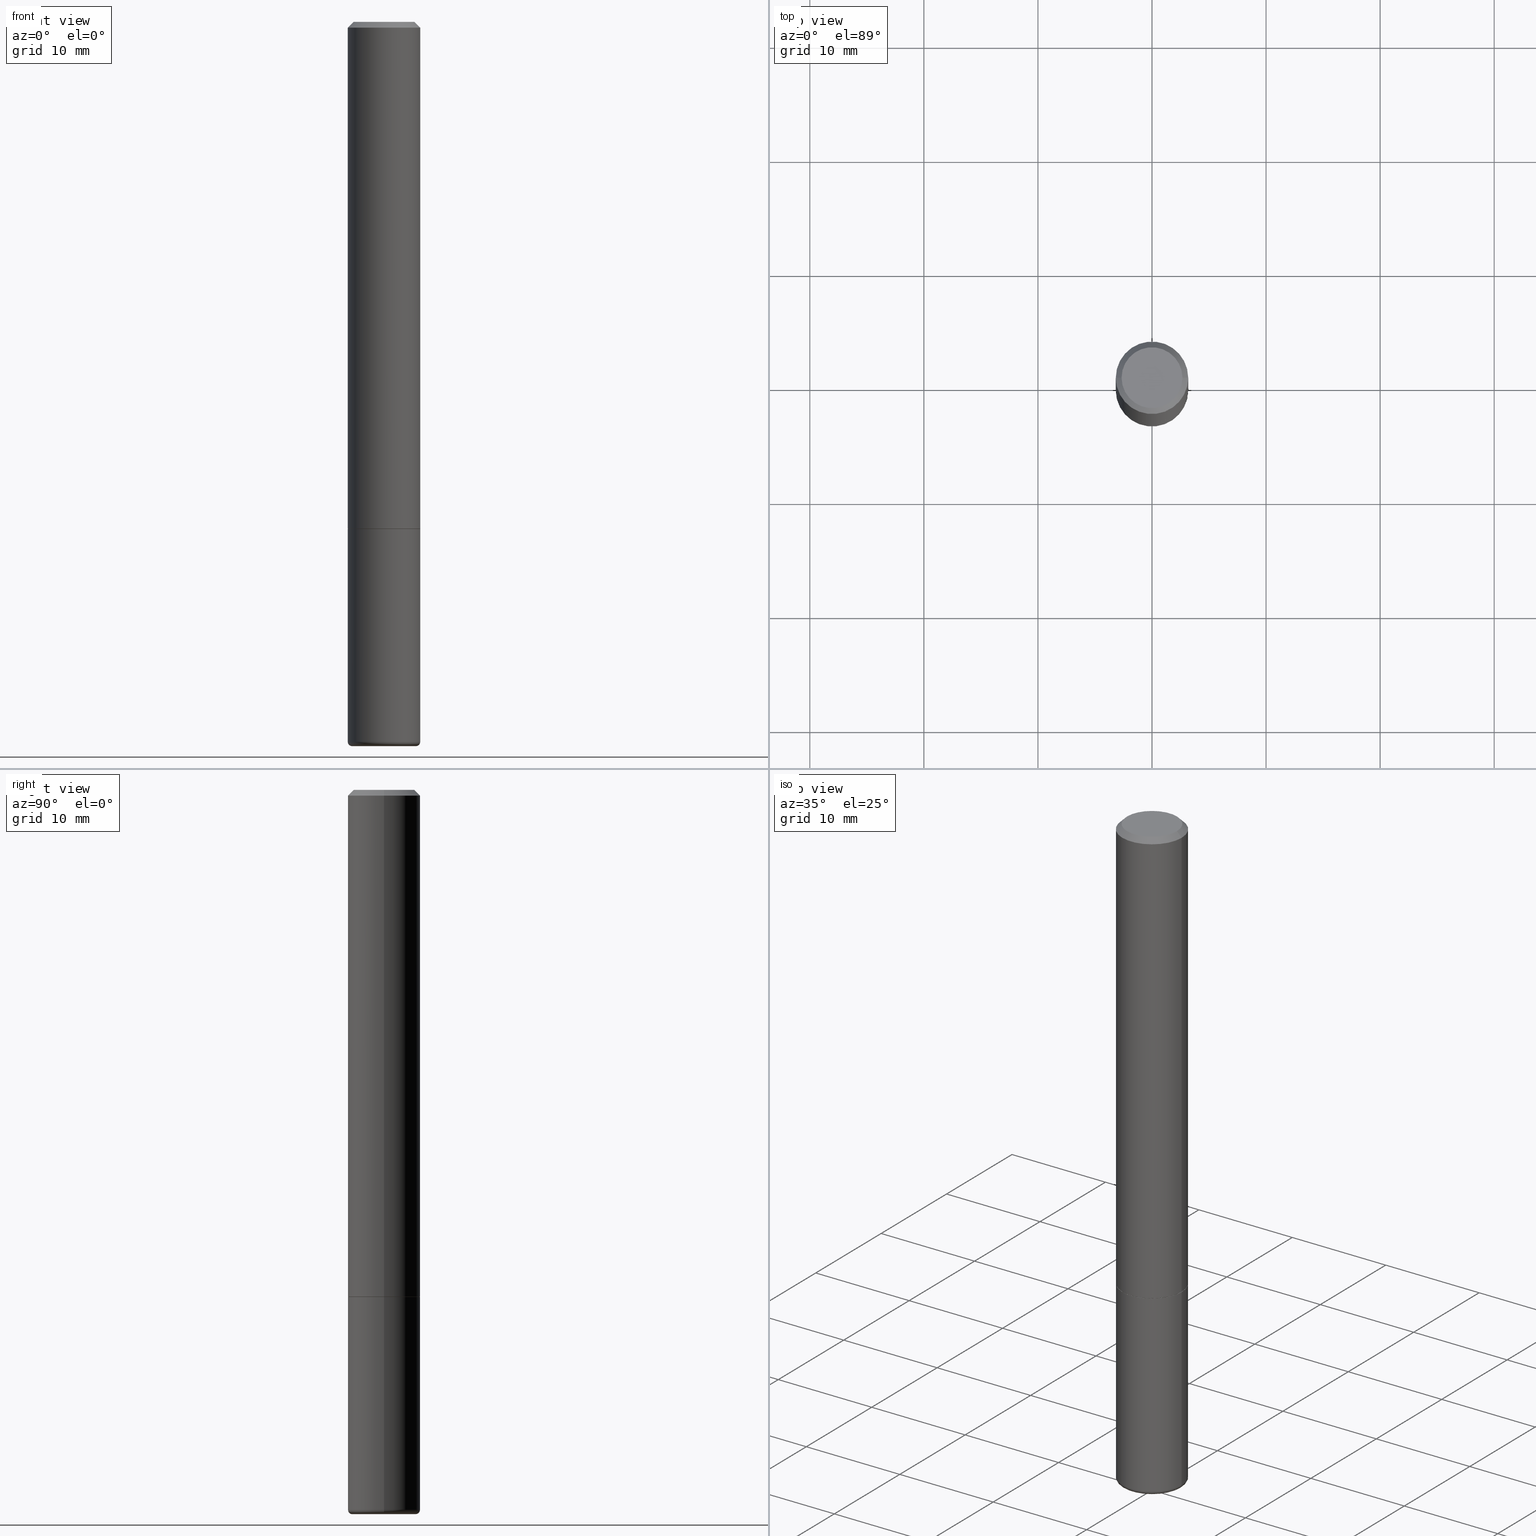
[diagram: canonical four-view strip — front | top / right | iso, engineering-drawing reading convention]
A machine part, canonical four-view strip (front | top / right | iso — engineering-drawing reading convention). The complete STEP part file that produces these views, byte-faithful:
ISO-10303-21;
HEADER;
FILE_DESCRIPTION (( 'STEP AP203' ),
    '1' );
FILE_NAME ('35669.STEP',
    '2022-11-02T20:37:40',
    ( '' ),
    ( '' ),
    'SwSTEP 2.0',
    'SolidWorks 2022',
    '' );
FILE_SCHEMA (( 'CONFIG_CONTROL_DESIGN' ));
ENDSEC;

DATA;
#1 = CC_DESIGN_PERSON_AND_ORGANIZATION_ASSIGNMENT ( #433, #281, ( #133 ) ) ;
#2 = APPLICATION_PROTOCOL_DEFINITION ( 'international standard', 'config_control_design', 1994, #298 ) ;
#3 = EDGE_LOOP ( 'NONE', ( #337, #201, #99, #5 ) ) ;
#4 = CARTESIAN_POINT ( 'NONE',  ( 0.000000000000000000, 0.000000000000000000, 0.000000000000000000 ) ) ;
#5 = ORIENTED_EDGE ( 'NONE', *, *, #467, .F. ) ;
#6 = AXIS2_PLACEMENT_3D ( 'NONE', #333, #399, #408 ) ;
#7 = EDGE_LOOP ( 'NONE', ( #368, #456, #324 ) ) ;
#8 = DIRECTION ( 'NONE',  ( 1.000000000000000000, -6.982962677686267499E-15, 4.876176775795935793E-29 ) ) ;
#9 = DIRECTION ( 'NONE',  ( -2.445468806185136597E-29, 3.491481338843145583E-15, 1.000000000000000000 ) ) ;
#10 = EDGE_CURVE ( 'NONE', #449, #472, #115, .T. ) ;
#11 = ORIENTED_EDGE ( 'NONE', *, *, #316, .F. ) ;
#12 = TOROIDAL_SURFACE ( 'NONE', #153, 0.1100000000000001948, 0.01499999999999986934 ) ;
#13 = CARTESIAN_POINT ( 'NONE',  ( -0.1249999999999993477, 8.030407079339155047E-16, -0.02000000000000009062 ) ) ;
#14 = PERSON_AND_ORGANIZATION_ROLE ( 'design_owner' ) ;
#15 = DATE_AND_TIME ( #244, #251 ) ;
#16 = PERSON_AND_ORGANIZATION_ROLE ( 'creator' ) ;
#17 = ORIENTED_EDGE ( 'NONE', *, *, #77, .F. ) ;
#18 = CARTESIAN_POINT ( 'NONE',  ( 0.1098691019675246544, -9.482460101173023392E-15, -2.500000000000000000 ) ) ;
#19 = AXIS2_PLACEMENT_3D ( 'NONE', #147, #229, #223 ) ;
#20 = AXIS2_PLACEMENT_3D ( 'NONE', #84, #167, #414 ) ;
#21 = APPROVAL_STATUS ( 'not_yet_approved' ) ;
#22 = ORIENTED_EDGE ( 'NONE', *, *, #83, .T. ) ;
#23 = DIRECTION ( 'NONE',  ( -2.445468806185136597E-29, 3.491481338843145583E-15, 1.000000000000000000 ) ) ;
#24 = EDGE_LOOP ( 'NONE', ( #373, #127, #22, #165 ) ) ;
#25 = DIRECTION ( 'NONE',  ( 7.105427357601001859E-15, 1.000000000000000000, -3.491481338843145583E-15 ) ) ;
#26 = DIRECTION ( 'NONE',  ( 1.000000000000000000, -6.982962677686267499E-15, 4.874400871621268483E-29 ) ) ;
#27 = EDGE_LOOP ( 'NONE', ( #274, #289 ) ) ;
#28 = EDGE_CURVE ( 'NONE', #362, #473, #394, .T. ) ;
#29 = CARTESIAN_POINT ( 'NONE',  ( 0.1249999999999996947, -8.728703347107811695E-16, 6.095220969744905027E-30 ) ) ;
#30 = DIRECTION ( 'NONE',  ( 1.000000000000000000, -6.982962677686269077E-15, 0.000000000000000000 ) ) ;
#31 = ORIENTED_EDGE ( 'NONE', *, *, #335, .F. ) ;
#32 = DIRECTION ( 'NONE',  ( -2.445468806185136597E-29, 3.491481338843145583E-15, 1.000000000000000000 ) ) ;
#33 = AXIS2_PLACEMENT_3D ( 'NONE', #222, #32, #286 ) ;
#34 = AXIS2_PLACEMENT_3D ( 'NONE', #50, #37, #432 ) ;
#35 = CARTESIAN_POINT ( 'NONE',  ( 6.113387482807804113E-29, -8.728297109885438444E-15, -2.499883649035179900 ) ) ;
#36 = LINE ( 'NONE', #258, #135 ) ;
#37 = DIRECTION ( 'NONE',  ( 2.438088387897960049E-29, -3.491481338843145188E-15, -1.000000000000000000 ) ) ;
#38 = EDGE_LOOP ( 'NONE', ( #266, #426, #392, #387 ) ) ;
#39 = VERTEX_POINT ( 'NONE', #212 ) ;
#40 = CARTESIAN_POINT ( 'NONE',  ( 6.113387482807804113E-29, -8.728297109885438444E-15, -2.499883649035179900 ) ) ;
#41 = FACE_OUTER_BOUND ( 'NONE', #460, .T. ) ;
#42 = AXIS2_PLACEMENT_3D ( 'NONE', #164, #237, #306 ) ;
#43 = VERTEX_POINT ( 'NONE', #189 ) ;
#44 = LOCAL_TIME ( 16, 37, 40.00000000000000000, #140 ) ;
#45 = FACE_OUTER_BOUND ( 'NONE', #328, .T. ) ;
#46 = DIRECTION ( 'NONE',  ( 2.445468806185136597E-29, -3.491481338843145583E-15, -1.000000000000000000 ) ) ;
#47 = DIRECTION ( 'NONE',  ( -2.445468806185136597E-29, 3.491481338843145583E-15, 1.000000000000000000 ) ) ;
#48 = ORIENTED_EDGE ( 'NONE', *, *, #335, .T. ) ;
#49 = VERTEX_POINT ( 'NONE', #60 ) ;
#50 = CARTESIAN_POINT ( 'NONE',  ( 7.332110811570533898E-16, 0.1049999999999993577, -3.879481030290301102E-16 ) ) ;
#51 = AXIS2_PLACEMENT_3D ( 'NONE', #74, #195, #196 ) ;
#52 = CYLINDRICAL_SURFACE ( 'NONE', #117, 0.1249999999999996947 ) ;
#53 = ADVANCED_FACE ( 'NONE', ( #483 ), #278, .T. ) ;
#54 = APPLICATION_CONTEXT ( 'configuration controlled 3d designs of mechanical parts and assemblies' ) ;
#55 = PERSON_AND_ORGANIZATION ( #331, #302 ) ;
#56 = FACE_OUTER_BOUND ( 'NONE', #27, .T. ) ;
#57 = AXIS2_PLACEMENT_3D ( 'NONE', #488, #477, #443 ) ;
#58 = CIRCLE ( 'NONE', #448, 0.1250000000000000278 ) ;
#59 = VERTEX_POINT ( 'NONE', #184 ) ;
#60 = CARTESIAN_POINT ( 'NONE',  ( -0.1098691019675246544, -7.868095562865759113E-15, -2.500000000000000000 ) ) ;
#61 = ORIENTED_EDGE ( 'NONE', *, *, #103, .F. ) ;
#62 = MECHANICAL_CONTEXT ( 'NONE', #298, 'mechanical' ) ;
#63 = EDGE_CURVE ( 'NONE', #473, #440, #180, .T. ) ;
#64 = CARTESIAN_POINT ( 'NONE',  ( 0.1249999999999993477, -9.273918764983002075E-16, -0.02000000000000009062 ) ) ;
#65 = APPROVAL_ROLE ( '' ) ;
#66 = DIRECTION ( 'NONE',  ( -0.7071067811865232589, 7.493145998870265808E-15, 0.7071067811865715536 ) ) ;
#67 = AXIS2_PLACEMENT_3D ( 'NONE', #155, #252, #100 ) ;
#68 = CONICAL_SURFACE ( 'NONE', #327, 0.09653660196752465728, 1.535889741755009918 ) ;
#69 = LOCAL_TIME ( 16, 37, 40.00000000000000000, #247 ) ;
#70 = EDGE_CURVE ( 'NONE', #291, #472, #381, .T. ) ;
#71 = CARTESIAN_POINT ( 'NONE',  ( -0.1049999999999993577, 7.681258945454844472E-16, -4.268512490100935748E-17 ) ) ;
#72 = DIRECTION ( 'NONE',  ( 1.000000000000000000, -6.982962677686265922E-15, 0.000000000000000000 ) ) ;
#73 = DIRECTION ( 'NONE',  ( -1.000000000000000000, 6.982962677686267499E-15, 0.000000000000000000 ) ) ;
#74 = CARTESIAN_POINT ( 'NONE',  ( 4.890937612370295054E-31, -6.982962677686322424E-17, -0.02000000000000009062 ) ) ;
#75 = LOCAL_TIME ( 16, 37, 40.00000000000000000, #207 ) ;
#76 = CARTESIAN_POINT ( 'NONE',  ( 4.279570410823989044E-29, -6.110092342975505460E-15, -1.750000000000000222 ) ) ;
#77 = EDGE_CURVE ( 'NONE', #420, #440, #134, .T. ) ;
#78 = DIRECTION ( 'NONE',  ( -2.445468806185136597E-29, 3.491481338843145583E-15, 1.000000000000000000 ) ) ;
#79 = DIRECTION ( 'NONE',  ( -2.445468806185136597E-29, 3.491481338843145583E-15, 1.000000000000000000 ) ) ;
#80 = PLANE ( 'NONE',  #492 ) ;
#81 = LINE ( 'NONE', #124, #317 ) ;
#82 = AXIS2_PLACEMENT_3D ( 'NONE', #442, #159, #300 ) ;
#83 = EDGE_CURVE ( 'NONE', #362, #420, #471, .T. ) ;
#84 = CARTESIAN_POINT ( 'NONE',  ( 4.279570410823989044E-29, -6.110092342975505460E-15, -1.750000000000000222 ) ) ;
#85 = ORIENTED_EDGE ( 'NONE', *, *, #28, .F. ) ;
#86 = CC_DESIGN_PERSON_AND_ORGANIZATION_ASSIGNMENT ( #319, #385, ( #351 ) ) ;
#87 = DIRECTION ( 'NONE',  ( -2.445468806185136597E-29, 3.491481338843145583E-15, 1.000000000000000000 ) ) ;
#88 = CARTESIAN_POINT ( 'NONE',  ( 0.1249999999999993477, -9.273918764983002075E-16, -0.02000000000000009062 ) ) ;
#89 = EDGE_CURVE ( 'NONE', #254, #43, #146, .T. ) ;
#90 = AXIS2_PLACEMENT_3D ( 'NONE', #160, #334, #332 ) ;
#91 = ORIENTED_EDGE ( 'NONE', *, *, #166, .F. ) ;
#92 = DIRECTION ( 'NONE',  ( -2.445468806185136597E-29, 3.491481338843145583E-15, 1.000000000000000000 ) ) ;
#93 = EDGE_CURVE ( 'NONE', #468, #59, #421, .T. ) ;
#94 = DATE_TIME_ROLE ( 'creation_date' ) ;
#95 = CARTESIAN_POINT ( 'NONE',  ( 4.279570410823989044E-29, -6.110092342975505460E-15, -1.750000000000000222 ) ) ;
#96 = CARTESIAN_POINT ( 'NONE',  ( 6.113672015462842613E-29, -8.728703347107864943E-15, -2.500000000000000000 ) ) ;
#97 = LINE ( 'NONE', #102, #464 ) ;
#98 = PERSON_AND_ORGANIZATION ( #331, #302 ) ;
#99 = ORIENTED_EDGE ( 'NONE', *, *, #260, .T. ) ;
#100 = DIRECTION ( 'NONE',  ( -1.000000000000000000, 6.982962677686265922E-15, 0.000000000000000000 ) ) ;
#101 = AXIS2_PLACEMENT_3D ( 'NONE', #480, #297, #154 ) ;
#102 = CARTESIAN_POINT ( 'NONE',  ( -0.1240000000000000269, -5.229019350632980447E-15, -1.750000000000000222 ) ) ;
#103 = EDGE_CURVE ( 'NONE', #59, #468, #376, .T. ) ;
#104 = EDGE_LOOP ( 'NONE', ( #417, #310, #220, #130 ) ) ;
#105 = COORDINATED_UNIVERSAL_TIME_OFFSET ( 5, 0, .BEHIND. ) ;
#106 = FACE_OUTER_BOUND ( 'NONE', #3, .T. ) ;
#107 = EDGE_CURVE ( 'NONE', #217, #449, #347, .T. ) ;
#108 = CARTESIAN_POINT ( 'NONE',  ( 6.076991380109446545E-29, -8.676333121198880578E-15, -2.485000571154037718 ) ) ;
#109 = VECTOR ( 'NONE', #276, 39.37007874015748854 ) ;
#110 = CC_DESIGN_SECURITY_CLASSIFICATION ( #351, ( #308 ) ) ;
#111 = CARTESIAN_POINT ( 'NONE',  ( -0.09653660196752465728, -8.054185621315559695E-15, -2.499883649035179900 ) ) ;
#112 = ORIENTED_EDGE ( 'NONE', *, *, #454, .F. ) ;
#113 = CARTESIAN_POINT ( 'NONE',  ( 4.277124942017804562E-29, -6.106600861636661664E-15, -1.749000000000000110 ) ) ;
#114 = CARTESIAN_POINT ( 'NONE',  ( -0.1249999999999996947, 8.881784197001230630E-16, -6.148668862818616813E-30 ) ) ;
#115 = CIRCLE ( 'NONE', #125, 0.1249999999999993477 ) ;
#116 = EDGE_CURVE ( 'NONE', #59, #183, #97, .T. ) ;
#117 = AXIS2_PLACEMENT_3D ( 'NONE', #4, #47, #205 ) ;
#118 = DIRECTION ( 'NONE',  ( -2.445468806185136597E-29, 3.491481338843145583E-15, 1.000000000000000000 ) ) ;
#119 = FACE_OUTER_BOUND ( 'NONE', #398, .T. ) ;
#120 = MANIFOLD_SOLID_BREP ( 'Body-Move/Copy2[2]', #410 ) ;
#121 = MANIFOLD_SOLID_BREP ( 'Body-Move/Copy2[1]', #437 ) ;
#122 = EDGE_CURVE ( 'NONE', #49, #473, #215, .T. ) ;
#123 = CIRCLE ( 'NONE', #33, 0.1098691019675246544 ) ;
#124 = CARTESIAN_POINT ( 'NONE',  ( 0.1240000000000000269, -6.975979715008602784E-15, -1.750000000000000222 ) ) ;
#125 = AXIS2_PLACEMENT_3D ( 'NONE', #259, #23, #72 ) ;
#126 = AXIS2_PLACEMENT_3D ( 'NONE', #312, #87, #277 ) ;
#127 = ORIENTED_EDGE ( 'NONE', *, *, #467, .T. ) ;
#128 = DIRECTION ( 'NONE',  ( 2.445468806185136597E-29, -3.491481338843145583E-15, -1.000000000000000000 ) ) ;
#129 = CARTESIAN_POINT ( 'NONE',  ( 0.1250000000000000278, -6.982962677686288799E-15, -1.750000000000000222 ) ) ;
#130 = ORIENTED_EDGE ( 'NONE', *, *, #107, .F. ) ;
#131 = ORIENTED_EDGE ( 'NONE', *, *, #122, .T. ) ;
#132 = CARTESIAN_POINT ( 'NONE',  ( 0.1240000000000000269, -6.975979715008602784E-15, -1.750000000000000222 ) ) ;
#133 = PRODUCT_DEFINITION ( 'UNKNOWN', '', #308, #345 ) ;
#134 = CIRCLE ( 'NONE', #287, 0.1250000000000000278 ) ;
#135 = VECTOR ( 'NONE', #230, 39.37007874015748143 ) ;
#136 = ORIENTED_EDGE ( 'NONE', *, *, #239, .F. ) ;
#137 = DIRECTION ( 'NONE',  ( 0.9999619230641714207, -6.890705306874825328E-15, -0.008726535498369011531 ) ) ;
#138 = DATE_AND_TIME ( #469, #44 ) ;
#139 = ADVANCED_FACE ( 'NONE', ( #149 ), #382, .F. ) ;
#140 = COORDINATED_UNIVERSAL_TIME_OFFSET ( 5, 0, .BEHIND. ) ;
#141 = ORIENTED_EDGE ( 'NONE', *, *, #371, .F. ) ;
#142 = AXIS2_PLACEMENT_3D ( 'NONE', #76, #79, #358 ) ;
#143 = CC_DESIGN_PERSON_AND_ORGANIZATION_ASSIGNMENT ( #55, #16, ( #308 ) ) ;
#144 = APPROVAL_DATE_TIME ( #210, #411 ) ;
#145 = EDGE_LOOP ( 'NONE', ( #218, #131, #85, #314 ) ) ;
#146 = LINE ( 'NONE', #424, #479 ) ;
#147 = CARTESIAN_POINT ( 'NONE',  ( 4.279570410823989044E-29, -6.110092342975505460E-15, -1.750000000000000222 ) ) ;
#148 = ADVANCED_FACE ( 'NONE', ( #484 ), #208, .T. ) ;
#149 = FACE_OUTER_BOUND ( 'NONE', #7, .T. ) ;
#150 = ORIENTED_EDGE ( 'NONE', *, *, #28, .T. ) ;
#151 = DIRECTION ( 'NONE',  ( 2.438088387897960049E-29, -3.491481338843145188E-15, -1.000000000000000000 ) ) ;
#152 = VECTOR ( 'NONE', #388, 39.37007874015748143 ) ;
#153 = AXIS2_PLACEMENT_3D ( 'NONE', #264, #156, #403 ) ;
#154 = DIRECTION ( 'NONE',  ( 1.000000000000000000, -6.982962677686267499E-15, 4.876176775795935793E-29 ) ) ;
#155 = CARTESIAN_POINT ( 'NONE',  ( 4.890937612370295054E-31, -6.982962677686322424E-17, -0.02000000000000009062 ) ) ;
#156 = DIRECTION ( 'NONE',  ( -2.445468806185136597E-29, 3.491481338843145583E-15, 1.000000000000000000 ) ) ;
#157 = ADVANCED_FACE ( 'NONE', ( #106 ), #294, .T. ) ;
#158 = ORIENTED_EDGE ( 'NONE', *, *, #316, .T. ) ;
#159 = DIRECTION ( 'NONE',  ( -2.445468806185136597E-29, 3.491481338843145583E-15, 1.000000000000000000 ) ) ;
#160 = CARTESIAN_POINT ( 'NONE',  ( 4.279570410823989044E-29, -6.110092342975505460E-15, -1.750000000000000222 ) ) ;
#161 = APPROVAL_PERSON_ORGANIZATION ( #98, #246, #65 ) ;
#162 = EDGE_LOOP ( 'NONE', ( #158, #48, #250, #350 ) ) ;
#163 = EDGE_CURVE ( 'NONE', #291, #217, #249, .T. ) ;
#164 = CARTESIAN_POINT ( 'NONE',  ( 6.076991380109446545E-29, -8.676333121198880578E-15, -2.485000571154037718 ) ) ;
#165 = ORIENTED_EDGE ( 'NONE', *, *, #482, .F. ) ;
#166 = EDGE_CURVE ( 'NONE', #43, #192, #214, .T. ) ;
#167 = DIRECTION ( 'NONE',  ( -2.445468806185136597E-29, 3.491481338843145583E-15, 1.000000000000000000 ) ) ;
#168 = ORIENTED_EDGE ( 'NONE', *, *, #83, .F. ) ;
#169 = ORIENTED_EDGE ( 'NONE', *, *, #353, .T. ) ;
#170 = ORIENTED_EDGE ( 'NONE', *, *, #70, .F. ) ;
#171 = ADVANCED_FACE ( 'NONE', ( #256 ), #190, .F. ) ;
#172 =( CONVERSION_BASED_UNIT ( 'INCH', #279 ) LENGTH_UNIT ( ) NAMED_UNIT ( #444 ) );
#173 = ORIENTED_EDGE ( 'NONE', *, *, #383, .T. ) ;
#174 = CARTESIAN_POINT ( 'NONE',  ( 0.1250000000000000278, -8.728703347107836346E-16, 6.095220969744921142E-30 ) ) ;
#175 = APPROVAL_DATE_TIME ( #478, #246 ) ;
#176 = ORIENTED_EDGE ( 'NONE', *, *, #166, .T. ) ;
#177 = DIRECTION ( 'NONE',  ( -0.7071067811865465735, 2.468850131082246805E-15, -0.7071067811865484609 ) ) ;
#178 = APPROVAL_ROLE ( '' ) ;
#179 = EDGE_CURVE ( 'NONE', #192, #49, #123, .T. ) ;
#180 = LINE ( 'NONE', #391, #265 ) ;
#181 = PERSON_AND_ORGANIZATION ( #331, #302 ) ;
#182 = APPROVAL ( #379, 'UNSPECIFIED' ) ;
#183 = VERTEX_POINT ( 'NONE', #380 ) ;
#184 = CARTESIAN_POINT ( 'NONE',  ( -0.1240000000000000269, -5.223720896284758045E-15, -1.750000000000000222 ) ) ;
#185 = PERSON_AND_ORGANIZATION_ROLE ( 'design_supplier' ) ;
#186 = AXIS2_PLACEMENT_3D ( 'NONE', #283, #389, #290 ) ;
#187 = DIRECTION ( 'NONE',  ( -1.000000000000000000, 7.105427357600985293E-15, 0.000000000000000000 ) ) ;
#188 = FACE_OUTER_BOUND ( 'NONE', #354, .T. ) ;
#189 = CARTESIAN_POINT ( 'NONE',  ( 0.09653660196752465728, -9.390586274395309019E-15, -2.499883649035179900 ) ) ;
#190 = CONICAL_SURFACE ( 'NONE', #457, 0.1098691019675246544, 1.562069680534929894 ) ;
#191 = AXIS2_PLACEMENT_3D ( 'NONE', #418, #369, #236 ) ;
#192 = VERTEX_POINT ( 'NONE', #365 ) ;
#193 = DIRECTION ( 'NONE',  ( -1.000000000000000000, 6.982962677686261977E-15, 0.000000000000000000 ) ) ;
#194 = CYLINDRICAL_SURFACE ( 'NONE', #101, 0.1250000000000000278 ) ;
#195 = DIRECTION ( 'NONE',  ( -2.445468806185136597E-29, 3.491481338843145583E-15, 1.000000000000000000 ) ) ;
#196 = DIRECTION ( 'NONE',  ( 1.000000000000000000, -6.982962677686265922E-15, 0.000000000000000000 ) ) ;
#197 = ADVANCED_FACE ( 'NONE', ( #56 ), #284, .F. ) ;
#198 = AXIS2_PLACEMENT_3D ( 'NONE', #95, #78, #219 ) ;
#199 = CONICAL_SURFACE ( 'NONE', #142, 0.1240000000000000269, 0.7853981633974141952 ) ;
#200 = FACE_OUTER_BOUND ( 'NONE', #145, .T. ) ;
#201 = ORIENTED_EDGE ( 'NONE', *, *, #371, .T. ) ;
#202 = FACE_OUTER_BOUND ( 'NONE', #474, .T. ) ;
#203 = CARTESIAN_POINT ( 'NONE',  ( -0.1098691019675246544, -7.961491508637733109E-15, -2.500000000000000000 ) ) ;
#204 = VECTOR ( 'NONE', #447, 39.37007874015748143 ) ;
#205 = DIRECTION ( 'NONE',  ( 1.000000000000000000, -6.982962677686266711E-15, 4.876176775795935793E-29 ) ) ;
#206 = DIRECTION ( 'NONE',  ( 0.9993908270190957621, -6.978169709227541488E-15, -0.03489949670250108021 ) ) ;
#207 = COORDINATED_UNIVERSAL_TIME_OFFSET ( 5, 0, .BEHIND. ) ;
#208 = CONICAL_SURFACE ( 'NONE', #272, 0.1249999999999993477, 0.7853981633974469467 ) ;
#209 = CIRCLE ( 'NONE', #42, 0.1250000000000000278 ) ;
#210 = DATE_AND_TIME ( #285, #235 ) ;
#211 = DIRECTION ( 'NONE',  ( 1.000000000000000000, -6.982962677686269077E-15, 0.000000000000000000 ) ) ;
#212 = CARTESIAN_POINT ( 'NONE',  ( 0.1250000000000000278, -6.979471196347445792E-15, -1.749000000000000110 ) ) ;
#213 = COORDINATED_UNIVERSAL_TIME_OFFSET ( 5, 0, .BEHIND. ) ;
#214 = LINE ( 'NONE', #18, #326 ) ;
#215 = CIRCLE ( 'NONE', #491, 0.01499999999999987454 ) ;
#216 = DIRECTION ( 'NONE',  ( -2.445468806185136877E-29, 3.491481338843145188E-15, 1.000000000000000000 ) ) ;
#217 = VERTEX_POINT ( 'NONE', #71 ) ;
#218 = ORIENTED_EDGE ( 'NONE', *, *, #179, .T. ) ;
#219 = DIRECTION ( 'NONE',  ( 1.000000000000000000, -6.982962677686269077E-15, 0.000000000000000000 ) ) ;
#220 = ORIENTED_EDGE ( 'NONE', *, *, #293, .T. ) ;
#221 = CARTESIAN_POINT ( 'NONE',  ( 0.1100000000000001948, -9.444459015744370548E-15, -2.485000571154037718 ) ) ;
#222 = CARTESIAN_POINT ( 'NONE',  ( 6.113672015462842613E-29, -8.728703347107864943E-15, -2.500000000000000000 ) ) ;
#223 = DIRECTION ( 'NONE',  ( 1.000000000000000000, -6.982962677686269077E-15, 0.000000000000000000 ) ) ;
#224 = ADVANCED_FACE ( 'NONE', ( #200 ), #12, .T. ) ;
#225 = DIRECTION ( 'NONE',  ( 1.000000000000000000, -6.982962677686266711E-15, 4.876176775795935793E-29 ) ) ;
#226 = CIRCLE ( 'NONE', #6, 0.1049999999999993577 ) ;
#227 = CARTESIAN_POINT ( 'NONE',  ( 0.1049999999999993577, -8.238720831321533257E-16, -4.268512490099867088E-17 ) ) ;
#228 = ADVANCED_FACE ( 'NONE', ( #119 ), #199, .T. ) ;
#229 = DIRECTION ( 'NONE',  ( -2.445468806185136597E-29, 3.491481338843145583E-15, 1.000000000000000000 ) ) ;
#230 = DIRECTION ( 'NONE',  ( -0.9993908270190957621, 6.856857904024556470E-15, -0.03489949670250108021 ) ) ;
#231 = EDGE_LOOP ( 'NONE', ( #173, #176, #141, #296 ) ) ;
#232 = CARTESIAN_POINT ( 'NONE',  ( 6.113672015462842613E-29, -8.728703347107864943E-15, -2.500000000000000000 ) ) ;
#233 = CC_DESIGN_DATE_AND_TIME_ASSIGNMENT ( #15, #94, ( #133 ) ) ;
#234 = AXIS2_PLACEMENT_3D ( 'NONE', #40, #329, #193 ) ;
#235 = LOCAL_TIME ( 16, 37, 40.00000000000000000, #213 ) ;
#236 = DIRECTION ( 'NONE',  ( 1.000000000000000000, -6.982962677686261977E-15, 0.000000000000000000 ) ) ;
#237 = DIRECTION ( 'NONE',  ( -2.445468806185136597E-29, 3.491481338843145583E-15, 1.000000000000000000 ) ) ;
#238 = CARTESIAN_POINT ( 'NONE',  ( 6.113387482807804113E-29, -8.728297109885438444E-15, -2.499883649035179900 ) ) ;
#239 = EDGE_CURVE ( 'NONE', #254, #342, #36, .T. ) ;
#240 = FACE_OUTER_BOUND ( 'NONE', #162, .T. ) ;
#241 = CONICAL_SURFACE ( 'NONE', #20, 0.1240000000000000269, 0.7853981633974141952 ) ;
#242 = CC_DESIGN_APPROVAL ( #246, ( #351 ) ) ;
#243 = EDGE_CURVE ( 'NONE', #39, #472, #490, .T. ) ;
#244 = CALENDAR_DATE ( 2022, 2, 11 ) ;
#245 = ORIENTED_EDGE ( 'NONE', *, *, #77, .T. ) ;
#246 = APPROVAL ( #21, 'UNSPECIFIED' ) ;
#247 = COORDINATED_UNIVERSAL_TIME_OFFSET ( 5, 0, .BEHIND. ) ;
#248 = ORIENTED_EDGE ( 'NONE', *, *, #89, .T. ) ;
#249 = CIRCLE ( 'NONE', #359, 0.1049999999999993577 ) ;
#250 = ORIENTED_EDGE ( 'NONE', *, *, #293, .F. ) ;
#251 = LOCAL_TIME ( 16, 37, 40.00000000000000000, #105 ) ;
#252 = DIRECTION ( 'NONE',  ( 2.445468806185136597E-29, -3.491481338843145583E-15, -1.000000000000000000 ) ) ;
#253 = APPLICATION_PROTOCOL_DEFINITION ( 'international standard', 'config_control_design', 1994, #54 ) ;
#254 = VERTEX_POINT ( 'NONE', #438 ) ;
#255 = CC_DESIGN_PERSON_AND_ORGANIZATION_ASSIGNMENT ( #181, #185, ( #308 ) ) ;
#256 = FACE_OUTER_BOUND ( 'NONE', #231, .T. ) ;
#257 = DATE_AND_TIME ( #348, #75 ) ;
#258 = CARTESIAN_POINT ( 'NONE',  ( -0.09653660196752465728, -8.054185621315559695E-15, -2.499883649035179900 ) ) ;
#259 = CARTESIAN_POINT ( 'NONE',  ( 4.890937612370295054E-31, -6.982962677686322424E-17, -0.02000000000000009062 ) ) ;
#260 = EDGE_CURVE ( 'NONE', #192, #362, #384, .T. ) ;
#261 = CYLINDRICAL_SURFACE ( 'NONE', #344, 0.1249999999999996947 ) ;
#262 = CARTESIAN_POINT ( 'NONE',  ( 1.043851414335219781E-45, -1.490343170380447145E-31, -4.268512490100411279E-17 ) ) ;
#263 = CC_DESIGN_PERSON_AND_ORGANIZATION_ASSIGNMENT ( #393, #14, ( #450 ) ) ;
#264 = CARTESIAN_POINT ( 'NONE',  ( 6.076991380109446545E-29, -8.676333121198880578E-15, -2.485000571154037718 ) ) ;
#265 = VECTOR ( 'NONE', #216, 39.37007874015748143 ) ;
#266 = ORIENTED_EDGE ( 'NONE', *, *, #116, .F. ) ;
#267 = AXIS2_PLACEMENT_3D ( 'NONE', #416, #92, #8 ) ;
#268 = DIRECTION ( 'NONE',  ( 1.000000000000000000, -6.982962677686261977E-15, 0.000000000000000000 ) ) ;
#269 = UNCERTAINTY_MEASURE_WITH_UNIT (LENGTH_MEASURE( 1.000000000000000082E-05 ), #172, 'distance_accuracy_value', 'NONE');
#270 = ORIENTED_EDGE ( 'NONE', *, *, #482, .T. ) ;
#271 = DIRECTION ( 'NONE',  ( 1.000000000000000000, -6.982962677686269077E-15, 0.000000000000000000 ) ) ;
#272 = AXIS2_PLACEMENT_3D ( 'NONE', #402, #361, #400 ) ;
#273 = AXIS2_PLACEMENT_3D ( 'NONE', #232, #364, #485 ) ;
#274 = ORIENTED_EDGE ( 'NONE', *, *, #367, .T. ) ;
#275 = ADVANCED_FACE ( 'NONE', ( #188 ), #80, .F. ) ;
#276 = DIRECTION ( 'NONE',  ( -0.9999619230641714207, 6.952228252019186602E-15, -0.008726535498369011531 ) ) ;
#277 = DIRECTION ( 'NONE',  ( 1.000000000000000000, -6.982962677686269077E-15, 0.000000000000000000 ) ) ;
#278 = CONICAL_SURFACE ( 'NONE', #67, 0.1249999999999993477, 0.7853981633974469467 ) ;
#279 = LENGTH_MEASURE_WITH_UNIT ( LENGTH_MEASURE( 0.02539999999999999897 ), #309 );
#280 = ADVANCED_FACE ( 'NONE', ( #363 ), #194, .T. ) ;
#281 = PERSON_AND_ORGANIZATION_ROLE ( 'creator' ) ;
#282 = ORIENTED_EDGE ( 'NONE', *, *, #383, .F. ) ;
#283 = CARTESIAN_POINT ( 'NONE',  ( 0.000000000000000000, 0.000000000000000000, 0.000000000000000000 ) ) ;
#284 = PLANE ( 'NONE',  #34 ) ;
#285 = CALENDAR_DATE ( 2022, 2, 11 ) ;
#286 = DIRECTION ( 'NONE',  ( 1.000000000000000000, -6.982962677686259611E-15, 0.000000000000000000 ) ) ;
#287 = AXIS2_PLACEMENT_3D ( 'NONE', #427, #9, #211 ) ;
#288 = APPROVAL_PERSON_ORGANIZATION ( #425, #182, #318 ) ;
#289 = ORIENTED_EDGE ( 'NONE', *, *, #163, .T. ) ;
#290 = DIRECTION ( 'NONE',  ( 1.000000000000000000, 0.000000000000000000, 0.000000000000000000 ) ) ;
#291 = VERTEX_POINT ( 'NONE', #227 ) ;
#292 = LINE ( 'NONE', #114, #204 ) ;
#293 = EDGE_CURVE ( 'NONE', #472, #449, #465, .T. ) ;
#294 = TOROIDAL_SURFACE ( 'NONE', #57, 0.1100000000000001948, 0.01499999999999986934 ) ;
#295 = CC_DESIGN_APPROVAL ( #411, ( #133 ) ) ;
#296 = ORIENTED_EDGE ( 'NONE', *, *, #452, .F. ) ;
#297 = DIRECTION ( 'NONE',  ( -2.445468806185136597E-29, 3.491481338843145583E-15, 1.000000000000000000 ) ) ;
#298 = APPLICATION_CONTEXT ( 'configuration controlled 3d designs of mechanical parts and assemblies' ) ;
#299 = CARTESIAN_POINT ( 'NONE',  ( 0.000000000000000000, 0.000000000000000000, 0.000000000000000000 ) ) ;
#300 = DIRECTION ( 'NONE',  ( 1.000000000000000000, -6.982962677686269077E-15, 0.000000000000000000 ) ) ;
#301 = VECTOR ( 'NONE', #177, 39.37007874015748143 ) ;
#302 = ORGANIZATION ( 'UNSPECIFIED', 'UNSPECIFIED', '' ) ;
#303 = DIRECTION ( 'NONE',  ( -2.445468806185136597E-29, 3.491481338843145583E-15, 1.000000000000000000 ) ) ;
#304 = CARTESIAN_POINT ( 'NONE',  ( 6.113672015462842613E-29, -8.728703347107864943E-15, -2.500000000000000000 ) ) ;
#305 = ORIENTED_EDGE ( 'NONE', *, *, #116, .T. ) ;
#306 = DIRECTION ( 'NONE',  ( 1.000000000000000000, -6.982962677686269077E-15, 0.000000000000000000 ) ) ;
#307 = VECTOR ( 'NONE', #463, 39.37007874015748143 ) ;
#308 = PRODUCT_DEFINITION_FORMATION_WITH_SPECIFIED_SOURCE ( 'ANY', '', #450, .NOT_KNOWN. ) ;
#309 =( LENGTH_UNIT ( ) NAMED_UNIT ( * ) SI_UNIT ( $, .METRE. ) );
#310 = ORIENTED_EDGE ( 'NONE', *, *, #70, .T. ) ;
#311 = ADVANCED_FACE ( 'NONE', ( #41 ), #360, .F. ) ;
#312 = CARTESIAN_POINT ( 'NONE',  ( 4.279570410823989044E-29, -6.110092342975505460E-15, -1.750000000000000222 ) ) ;
#313 = ORIENTED_EDGE ( 'NONE', *, *, #320, .T. ) ;
#314 = ORIENTED_EDGE ( 'NONE', *, *, #260, .F. ) ;
#315 = SECURITY_CLASSIFICATION_LEVEL ( 'unclassified' ) ;
#316 = EDGE_CURVE ( 'NONE', #39, #183, #338, .T. ) ;
#317 = VECTOR ( 'NONE', #339, 39.37007874015748854 ) ;
#318 = APPROVAL_ROLE ( '' ) ;
#319 = PERSON_AND_ORGANIZATION ( #331, #302 ) ;
#320 = EDGE_CURVE ( 'NONE', #183, #39, #58, .T. ) ;
#321 = CALENDAR_DATE ( 2022, 2, 11 ) ;
#322 = CIRCLE ( 'NONE', #126, 0.1250000000000000278 ) ;
#323 = ADVANCED_FACE ( 'NONE', ( #451 ), #261, .T. ) ;
#324 = ORIENTED_EDGE ( 'NONE', *, *, #353, .F. ) ;
#325 = DIRECTION ( 'NONE',  ( -1.000000000000000000, 6.982962677686265922E-15, -4.876176775795935793E-29 ) ) ;
#326 = VECTOR ( 'NONE', #137, 39.37007874015748854 ) ;
#327 = AXIS2_PLACEMENT_3D ( 'NONE', #238, #46, #455 ) ;
#328 = EDGE_LOOP ( 'NONE', ( #136, #248, #282 ) ) ;
#329 = DIRECTION ( 'NONE',  ( 2.445468806185136597E-29, -3.491481338843145583E-15, -1.000000000000000000 ) ) ;
#330 = DIRECTION ( 'NONE',  ( 1.000000000000000000, -6.982962677686326664E-15, 0.000000000000000000 ) ) ;
#331 = PERSON ( 'UNSPECIFIED', 'UNSPECIFIED', 'UNSPECIFIED', ('UNSPECIFIED'), ('UNSPECIFIED'), ('UNSPECIFIED') ) ;
#332 = DIRECTION ( 'NONE',  ( 1.000000000000000000, -6.982962677686265922E-15, 4.876176775795935793E-29 ) ) ;
#333 = CARTESIAN_POINT ( 'NONE',  ( 1.043851414335219781E-45, -1.490343170380447145E-31, -4.268512490100411279E-17 ) ) ;
#334 = DIRECTION ( 'NONE',  ( -2.438088387897960049E-29, 3.491481338843145188E-15, 1.000000000000000000 ) ) ;
#335 = EDGE_CURVE ( 'NONE', #183, #449, #292, .T. ) ;
#336 = CARTESIAN_POINT ( 'NONE',  ( -0.1249999999999993477, 8.030407079339155047E-16, -0.02000000000000009062 ) ) ;
#337 = ORIENTED_EDGE ( 'NONE', *, *, #122, .F. ) ;
#338 = CIRCLE ( 'NONE', #82, 0.1250000000000000278 ) ;
#339 = DIRECTION ( 'NONE',  ( 0.7071067811865232589, -2.468850131082003836E-15, 0.7071067811865715536 ) ) ;
#340 = CARTESIAN_POINT ( 'NONE',  ( -0.1250000000000000278, -6.505034312387068576E-15, -2.485000571154037718 ) ) ;
#341 = ORIENTED_EDGE ( 'NONE', *, *, #107, .T. ) ;
#342 = VERTEX_POINT ( 'NONE', #111 ) ;
#343 = APPROVAL_DATE_TIME ( #257, #182 ) ;
#344 = AXIS2_PLACEMENT_3D ( 'NONE', #299, #445, #225 ) ;
#345 = DESIGN_CONTEXT ( 'detailed design', #54, 'design' ) ;
#346 = SHAPE_DEFINITION_REPRESENTATION ( #370, #439 ) ;
#347 = LINE ( 'NONE', #13, #301 ) ;
#348 = CALENDAR_DATE ( 2022, 2, 11 ) ;
#349 = EDGE_LOOP ( 'NONE', ( #31, #313, #441, #375 ) ) ;
#350 = ORIENTED_EDGE ( 'NONE', *, *, #243, .F. ) ;
#351 = SECURITY_CLASSIFICATION ( '', '', #315 ) ;
#352 = ORIENTED_EDGE ( 'NONE', *, *, #10, .T. ) ;
#353 = EDGE_CURVE ( 'NONE', #43, #342, #476, .T. ) ;
#354 = EDGE_LOOP ( 'NONE', ( #245, #270 ) ) ;
#355 = DIRECTION ( 'NONE',  ( -2.445468806185136877E-29, 3.491481338843145188E-15, 1.000000000000000000 ) ) ;
#356 = DIRECTION ( 'NONE',  ( -2.445468806185136597E-29, 3.491481338843145583E-15, 1.000000000000000000 ) ) ;
#357 = ORIENTED_EDGE ( 'NONE', *, *, #93, .F. ) ;
#358 = DIRECTION ( 'NONE',  ( 1.000000000000000000, -6.982962677686269077E-15, 0.000000000000000000 ) ) ;
#359 = AXIS2_PLACEMENT_3D ( 'NONE', #262, #435, #26 ) ;
#360 = PLANE ( 'NONE',  #90 ) ;
#361 = DIRECTION ( 'NONE',  ( 2.445468806185136597E-29, -3.491481338843145583E-15, -1.000000000000000000 ) ) ;
#362 = VERTEX_POINT ( 'NONE', #407 ) ;
#363 = FACE_OUTER_BOUND ( 'NONE', #446, .T. ) ;
#364 = DIRECTION ( 'NONE',  ( -2.445468806185136597E-29, 3.491481338843145583E-15, 1.000000000000000000 ) ) ;
#365 = CARTESIAN_POINT ( 'NONE',  ( 0.1098691019675246544, -9.495915185577995199E-15, -2.500000000000000000 ) ) ;
#366 = CONICAL_SURFACE ( 'NONE', #481, 0.1098691019675246544, 1.562069680534929894 ) ;
#367 = EDGE_CURVE ( 'NONE', #217, #291, #226, .T. ) ;
#368 = ORIENTED_EDGE ( 'NONE', *, *, #89, .F. ) ;
#369 = DIRECTION ( 'NONE',  ( -2.445468806185136597E-29, 3.491481338843145583E-15, 1.000000000000000000 ) ) ;
#370 = PRODUCT_DEFINITION_SHAPE ( 'NONE', 'NONE',  #133 ) ;
#371 = EDGE_CURVE ( 'NONE', #49, #192, #422, .T. ) ;
#372 = CYLINDRICAL_SURFACE ( 'NONE', #267, 0.1250000000000000278 ) ;
#373 = ORIENTED_EDGE ( 'NONE', *, *, #63, .F. ) ;
#374 =( NAMED_UNIT ( * ) PLANE_ANGLE_UNIT ( ) SI_UNIT ( $, .RADIAN. ) );
#375 = ORIENTED_EDGE ( 'NONE', *, *, #10, .F. ) ;
#376 = CIRCLE ( 'NONE', #19, 0.1240000000000000269 ) ;
#377 = DIRECTION ( 'NONE',  ( -1.000000000000000000, 6.982962677686267499E-15, 0.000000000000000000 ) ) ;
#378 =( NAMED_UNIT ( * ) SI_UNIT ( $, .STERADIAN. ) SOLID_ANGLE_UNIT ( ) );
#379 = APPROVAL_STATUS ( 'not_yet_approved' ) ;
#380 = CARTESIAN_POINT ( 'NONE',  ( -0.1250000000000000278, -2.200036824506628966E-15, -1.749000000000000110 ) ) ;
#381 = LINE ( 'NONE', #64, #152 ) ;
#382 = CONICAL_SURFACE ( 'NONE', #234, 0.09653660196752465728, 1.535889741755009918 ) ;
#383 = EDGE_CURVE ( 'NONE', #342, #43, #395, .T. ) ;
#384 = CIRCLE ( 'NONE', #406, 0.01499999999999987454 ) ;
#385 = PERSON_AND_ORGANIZATION_ROLE ( 'classification_officer' ) ;
#386 =( GEOMETRIC_REPRESENTATION_CONTEXT ( 3 ) GLOBAL_UNCERTAINTY_ASSIGNED_CONTEXT ( ( #269 ) ) GLOBAL_UNIT_ASSIGNED_CONTEXT ( ( #172, #374, #378 ) ) REPRESENTATION_CONTEXT ( 'NONE', 'WORKASPACE' ) );
#387 = ORIENTED_EDGE ( 'NONE', *, *, #320, .F. ) ;
#388 = DIRECTION ( 'NONE',  ( 0.7071067811865465735, -7.319954787623252890E-15, -0.7071067811865484609 ) ) ;
#389 = DIRECTION ( 'NONE',  ( 0.000000000000000000, 0.000000000000000000, 1.000000000000000000 ) ) ;
#390 = CARTESIAN_POINT ( 'NONE',  ( -0.1100000000000001948, -7.894736111862769680E-15, -2.485000571154037718 ) ) ;
#391 = CARTESIAN_POINT ( 'NONE',  ( -0.1250000000000000278, 8.881784197001254296E-16, -6.148668862818634329E-30 ) ) ;
#392 = ORIENTED_EDGE ( 'NONE', *, *, #454, .T. ) ;
#393 = PERSON_AND_ORGANIZATION ( #331, #302 ) ;
#394 = CIRCLE ( 'NONE', #404, 0.1250000000000000278 ) ;
#395 = CIRCLE ( 'NONE', #191, 0.09653660196752465728 ) ;
#397 = ORIENTED_EDGE ( 'NONE', *, *, #63, .T. ) ;
#396 = PRODUCT_RELATED_PRODUCT_CATEGORY ( 'detail', '', ( #450 ) ) ;
#398 = EDGE_LOOP ( 'NONE', ( #419, #305, #11, #112 ) ) ;
#399 = DIRECTION ( 'NONE',  ( -2.445468806185136597E-29, 3.491481338843145583E-15, 1.000000000000000000 ) ) ;
#400 = DIRECTION ( 'NONE',  ( -1.000000000000000000, 6.982962677686265922E-15, 0.000000000000000000 ) ) ;
#401 = DIRECTION ( 'NONE',  ( -6.982962677686266711E-15, -1.000000000000000000, 3.491481338843145583E-15 ) ) ;
#402 = CARTESIAN_POINT ( 'NONE',  ( 4.890937612370295054E-31, -6.982962677686322424E-17, -0.02000000000000009062 ) ) ;
#403 = DIRECTION ( 'NONE',  ( 1.000000000000000000, -6.982962677686266711E-15, 4.883557194083113462E-29 ) ) ;
#404 = AXIS2_PLACEMENT_3D ( 'NONE', #108, #356, #30 ) ;
#405 = EDGE_LOOP ( 'NONE', ( #170, #415, #341, #352 ) ) ;
#406 = AXIS2_PLACEMENT_3D ( 'NONE', #221, #401, #330 ) ;
#407 = CARTESIAN_POINT ( 'NONE',  ( 0.1250000000000000278, -9.549203455909665495E-15, -2.485000571154037718 ) ) ;
#408 = DIRECTION ( 'NONE',  ( 1.000000000000000000, -6.982962677686267499E-15, 4.874400871621268483E-29 ) ) ;
#409 = ADVANCED_FACE ( 'NONE', ( #423 ), #241, .T. ) ;
#410 = CLOSED_SHELL ( 'NONE', ( #228, #489, #53, #148, #323, #409, #311, #197 ) ) ;
#411 = APPROVAL ( #428, 'UNSPECIFIED' ) ;
#412 = AXIS2_PLACEMENT_3D ( 'NONE', #35, #118, #268 ) ;
#413 = CC_DESIGN_APPROVAL ( #182, ( #308 ) ) ;
#414 = DIRECTION ( 'NONE',  ( 1.000000000000000000, -6.982962677686269077E-15, 0.000000000000000000 ) ) ;
#415 = ORIENTED_EDGE ( 'NONE', *, *, #367, .F. ) ;
#416 = CARTESIAN_POINT ( 'NONE',  ( 0.000000000000000000, 0.000000000000000000, 0.000000000000000000 ) ) ;
#417 = ORIENTED_EDGE ( 'NONE', *, *, #163, .F. ) ;
#418 = CARTESIAN_POINT ( 'NONE',  ( 6.113387482807804113E-29, -8.728297109885438444E-15, -2.499883649035179900 ) ) ;
#419 = ORIENTED_EDGE ( 'NONE', *, *, #93, .T. ) ;
#420 = VERTEX_POINT ( 'NONE', #129 ) ;
#421 = CIRCLE ( 'NONE', #198, 0.1240000000000000269 ) ;
#422 = CIRCLE ( 'NONE', #273, 0.1098691019675246544 ) ;
#423 = FACE_OUTER_BOUND ( 'NONE', #38, .T. ) ;
#424 = CARTESIAN_POINT ( 'NONE',  ( 0.09653660196752465728, -9.390586274395309019E-15, -2.499883649035179900 ) ) ;
#425 = PERSON_AND_ORGANIZATION ( #331, #302 ) ;
#426 = ORIENTED_EDGE ( 'NONE', *, *, #103, .T. ) ;
#427 = CARTESIAN_POINT ( 'NONE',  ( 4.279570410823989044E-29, -6.110092342975505460E-15, -1.750000000000000222 ) ) ;
#428 = APPROVAL_STATUS ( 'not_yet_approved' ) ;
#429 = DIRECTION ( 'NONE',  ( 2.445468806185136597E-29, -3.491481338843145583E-15, -1.000000000000000000 ) ) ;
#430 = VECTOR ( 'NONE', #355, 39.37007874015748143 ) ;
#431 = DATE_TIME_ROLE ( 'classification_date' ) ;
#432 = DIRECTION ( 'NONE',  ( -1.000000000000000000, 6.982962677686265922E-15, -4.876176775795935793E-29 ) ) ;
#433 = PERSON_AND_ORGANIZATION ( #331, #302 ) ;
#434 = ADVANCED_FACE ( 'NONE', ( #45 ), #68, .F. ) ;
#435 = DIRECTION ( 'NONE',  ( -2.445468806185136597E-29, 3.491481338843145583E-15, 1.000000000000000000 ) ) ;
#436 = CC_DESIGN_DATE_AND_TIME_ASSIGNMENT ( #138, #431, ( #351 ) ) ;
#437 = CLOSED_SHELL ( 'NONE', ( #171, #224, #280, #434, #139, #275, #475, #157, #470 ) ) ;
#438 = CARTESIAN_POINT ( 'NONE',  ( 6.102708739358298618E-29, -8.720013556295160926E-15, -2.496512516610355448 ) ) ;
#439 = ADVANCED_BREP_SHAPE_REPRESENTATION ( '35669', ( #121, #120, #186 ), #386 ) ;
#440 = VERTEX_POINT ( 'NONE', #459 ) ;
#441 = ORIENTED_EDGE ( 'NONE', *, *, #243, .T. ) ;
#442 = CARTESIAN_POINT ( 'NONE',  ( 4.277124942017804562E-29, -6.106600861636661664E-15, -1.749000000000000110 ) ) ;
#443 = DIRECTION ( 'NONE',  ( 1.000000000000000000, -6.982962677686266711E-15, 4.883557194083113462E-29 ) ) ;
#444 = DIMENSIONAL_EXPONENTS ( 1.000000000000000000, 0.000000000000000000, 0.000000000000000000, 0.000000000000000000, 0.000000000000000000, 0.000000000000000000, 0.000000000000000000 ) ;
#445 = DIRECTION ( 'NONE',  ( -2.445468806185136597E-29, 3.491481338843145583E-15, 1.000000000000000000 ) ) ;
#446 = EDGE_LOOP ( 'NONE', ( #150, #397, #17, #168 ) ) ;
#447 = DIRECTION ( 'NONE',  ( -2.445468806185136877E-29, 3.491481338843145188E-15, 1.000000000000000000 ) ) ;
#448 = AXIS2_PLACEMENT_3D ( 'NONE', #113, #303, #271 ) ;
#449 = VERTEX_POINT ( 'NONE', #336 ) ;
#450 = PRODUCT ( '35669', '35669', '', ( #62 ) ) ;
#451 = FACE_OUTER_BOUND ( 'NONE', #349, .T. ) ;
#452 = EDGE_CURVE ( 'NONE', #342, #49, #453, .T. ) ;
#453 = LINE ( 'NONE', #203, #109 ) ;
#454 = EDGE_CURVE ( 'NONE', #468, #39, #81, .T. ) ;
#455 = DIRECTION ( 'NONE',  ( -1.000000000000000000, 6.982962677686261977E-15, 0.000000000000000000 ) ) ;
#456 = ORIENTED_EDGE ( 'NONE', *, *, #239, .T. ) ;
#457 = AXIS2_PLACEMENT_3D ( 'NONE', #96, #429, #73 ) ;
#458 = APPROVAL_PERSON_ORGANIZATION ( #466, #411, #178 ) ;
#459 = CARTESIAN_POINT ( 'NONE',  ( -0.1250000000000000278, -6.505034312387068576E-15, -1.750000000000000222 ) ) ;
#460 = EDGE_LOOP ( 'NONE', ( #357, #61 ) ) ;
#461 = FACE_OUTER_BOUND ( 'NONE', #24, .T. ) ;
#462 = ORIENTED_EDGE ( 'NONE', *, *, #452, .T. ) ;
#463 = DIRECTION ( 'NONE',  ( -2.445468806185136877E-29, 3.491481338843145188E-15, 1.000000000000000000 ) ) ;
#464 = VECTOR ( 'NONE', #66, 39.37007874015748854 ) ;
#465 = CIRCLE ( 'NONE', #51, 0.1249999999999993477 ) ;
#466 = PERSON_AND_ORGANIZATION ( #331, #302 ) ;
#467 = EDGE_CURVE ( 'NONE', #473, #362, #209, .T. ) ;
#468 = VERTEX_POINT ( 'NONE', #132 ) ;
#469 = CALENDAR_DATE ( 2022, 2, 11 ) ;
#470 = ADVANCED_FACE ( 'NONE', ( #202 ), #366, .F. ) ;
#471 = LINE ( 'NONE', #174, #307 ) ;
#472 = VERTEX_POINT ( 'NONE', #88 ) ;
#473 = VERTEX_POINT ( 'NONE', #340 ) ;
#474 = EDGE_LOOP ( 'NONE', ( #91, #169, #462, #486 ) ) ;
#475 = ADVANCED_FACE ( 'NONE', ( #461 ), #372, .T. ) ;
#476 = CIRCLE ( 'NONE', #412, 0.09653660196752465728 ) ;
#477 = DIRECTION ( 'NONE',  ( -2.445468806185136597E-29, 3.491481338843145583E-15, 1.000000000000000000 ) ) ;
#478 = DATE_AND_TIME ( #321, #69 ) ;
#479 = VECTOR ( 'NONE', #206, 39.37007874015748143 ) ;
#480 = CARTESIAN_POINT ( 'NONE',  ( 0.000000000000000000, 0.000000000000000000, 0.000000000000000000 ) ) ;
#481 = AXIS2_PLACEMENT_3D ( 'NONE', #304, #128, #377 ) ;
#482 = EDGE_CURVE ( 'NONE', #440, #420, #322, .T. ) ;
#483 = FACE_OUTER_BOUND ( 'NONE', #104, .T. ) ;
#484 = FACE_OUTER_BOUND ( 'NONE', #405, .T. ) ;
#485 = DIRECTION ( 'NONE',  ( 1.000000000000000000, -6.982962677686259611E-15, 0.000000000000000000 ) ) ;
#486 = ORIENTED_EDGE ( 'NONE', *, *, #179, .F. ) ;
#487 = CARTESIAN_POINT ( 'NONE',  ( 8.728703347108263317E-16, 0.1249999999999939215, -1.750000000000000666 ) ) ;
#488 = CARTESIAN_POINT ( 'NONE',  ( 6.076991380109446545E-29, -8.676333121198880578E-15, -2.485000571154037718 ) ) ;
#489 = ADVANCED_FACE ( 'NONE', ( #240 ), #52, .T. ) ;
#490 = LINE ( 'NONE', #29, #430 ) ;
#491 = AXIS2_PLACEMENT_3D ( 'NONE', #390, #25, #187 ) ;
#492 = AXIS2_PLACEMENT_3D ( 'NONE', #487, #151, #325 ) ;
ENDSEC;
END-ISO-10303-21;
